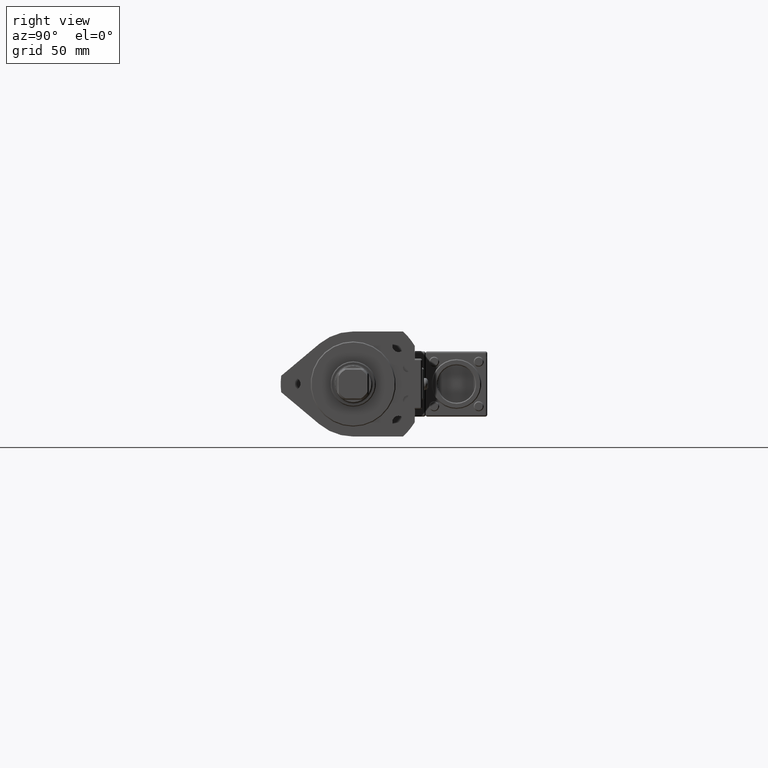
[diagram: clean part render]
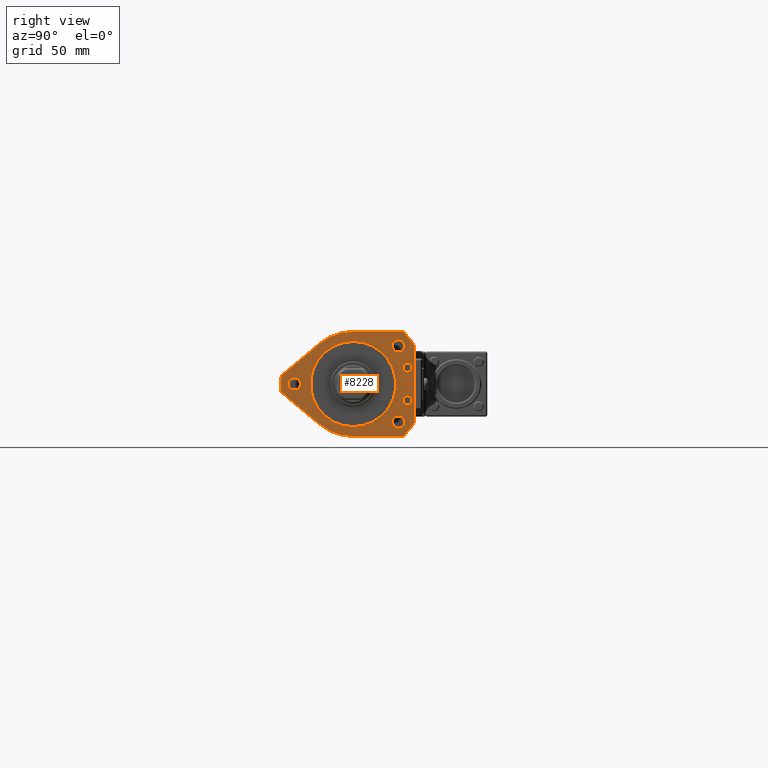
[diagram: same view with one face highlighted and labeled with its STEP entity id]
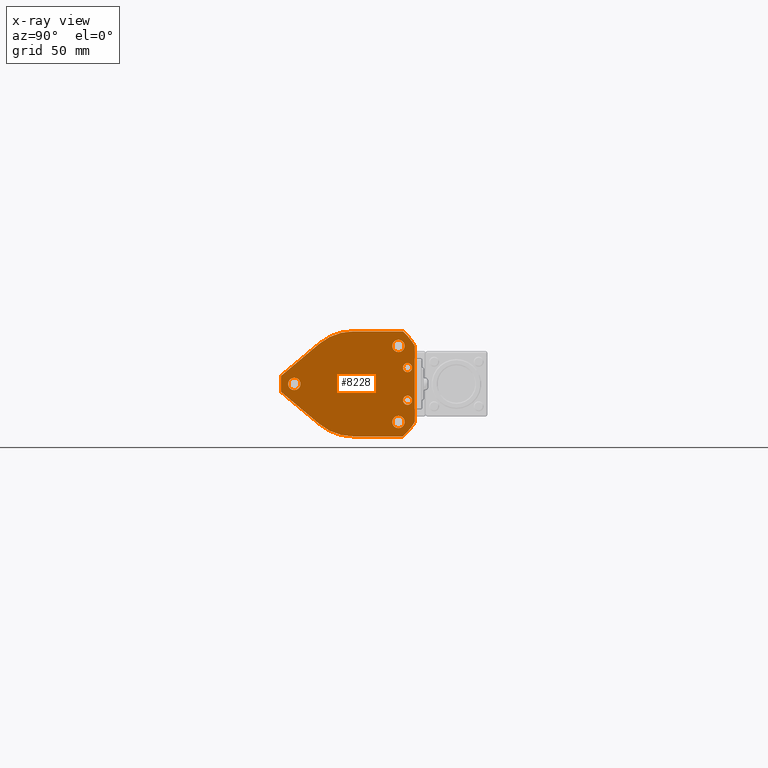
[diagram: x-ray of the same camera — body ghosted, the highlighted face saturated]
A machine part, right view. The second image highlights one B-rep face of the part: STEP entity #8228.
The next image is the same camera in x-ray: the body ghosted, the highlighted face saturated — about 0% of this face is hidden behind the body in this view.
In plain terms, the highlighted planar face has unit normal (-1, 0, 0).
Its self-contained STEP definition (entity closure, byte-faithful):
#2 = AXIS2_PLACEMENT_3D ( 'NONE', #9466, #3735, #10420 ) ;
#7 = DIRECTION ( 'NONE',  ( 0.0000000000000000000, 0.0000000000000000000, 1.000000000000000000 ) ) ;
#104 = DIRECTION ( 'NONE',  ( 1.000000000000000000, -0.0000000000000000000, -0.0000000000000000000 ) ) ;
#124 = CIRCLE ( 'NONE', #10028, 28.99999999999999600 ) ;
#134 = CARTESIAN_POINT ( 'NONE',  ( 1.138921523207035600E-015, -32.50000000000000000, -3.980102097228898600E-015 ) ) ;
#295 = EDGE_CURVE ( 'NONE', #11164, #10907, #8881, .T. ) ;
#353 = VERTEX_POINT ( 'NONE', #9888 ) ;
#425 = CARTESIAN_POINT ( 'NONE',  ( 1.102182119232607200E-016, 29.99999999999999600, -8.999999999999996400 ) ) ;
#432 = DIRECTION ( 'NONE',  ( -0.0000000000000000000, 1.000000000000000000, -0.0000000000000000000 ) ) ;
#545 = EDGE_LOOP ( 'NONE', ( #8163, #8890 ) ) ;
#633 = CARTESIAN_POINT ( 'NONE',  ( 0.0000000000000000000, 27.54995462791182700, 28.99999999999999300 ) ) ;
#675 = ORIENTED_EDGE ( 'NONE', *, *, #7061, .F. ) ;
#751 = ORIENTED_EDGE ( 'NONE', *, *, #9516, .F. ) ;
#801 = ORIENTED_EDGE ( 'NONE', *, *, #5025, .F. ) ;
#926 = DIRECTION ( 'NONE',  ( 0.0000000000000000000, 0.0000000000000000000, 1.000000000000000000 ) ) ;
#941 = ORIENTED_EDGE ( 'NONE', *, *, #5769, .F. ) ;
#945 = EDGE_CURVE ( 'NONE', #2392, #353, #11850, .T. ) ;
#1076 = DIRECTION ( 'NONE',  ( 0.0000000000000000000, 0.0000000000000000000, -1.000000000000000000 ) ) ;
#1174 = FACE_BOUND ( 'NONE', #6062, .T. ) ;
#1212 = EDGE_CURVE ( 'NONE', #6483, #9055, #4057, .T. ) ;
#1247 = ORIENTED_EDGE ( 'NONE', *, *, #8858, .F. ) ;
#1374 = DIRECTION ( 'NONE',  ( 0.0000000000000000000, 0.0000000000000000000, -1.000000000000000000 ) ) ;
#1651 = CARTESIAN_POINT ( 'NONE',  ( 1.138921523207035600E-015, 25.00000000000000000, 17.60000000000001600 ) ) ;
#1679 = AXIS2_PLACEMENT_3D ( 'NONE', #134, #6807, #1076 ) ;
#1709 = AXIS2_PLACEMENT_3D ( 'NONE', #4363, #11060, #5330 ) ;
#1876 = CARTESIAN_POINT ( 'NONE',  ( 1.102182119232607200E-016, 30.00000000000000000, 6.500000000000007100 ) ) ;
#2079 = EDGE_LOOP ( 'NONE', ( #675, #8348 ) ) ;
#2091 = VERTEX_POINT ( 'NONE', #7030 ) ;
#2148 = CARTESIAN_POINT ( 'NONE',  ( 1.102182119232607200E-016, 30.00000000000000000, 9.000000000000003600 ) ) ;
#2244 = AXIS2_PLACEMENT_3D ( 'NONE', #5813, #104, #6775 ) ;
#2259 = CARTESIAN_POINT ( 'NONE',  ( 1.102182119232607200E-016, 30.00000000000000000, 9.000000000000003600 ) ) ;
#2392 = VERTEX_POINT ( 'NONE', #2836 ) ;
#2480 = ORIENTED_EDGE ( 'NONE', *, *, #1212, .F. ) ;
#2635 = CIRCLE ( 'NONE', #10683, 3.399999999999989700 ) ;
#2836 = CARTESIAN_POINT ( 'NONE',  ( 1.138921523207035600E-015, -32.50000000000000000, 3.399999999999986100 ) ) ;
#2879 = DIRECTION ( 'NONE',  ( 1.000000000000000000, -0.0000000000000000000, -0.0000000000000000000 ) ) ;
#2906 = ORIENTED_EDGE ( 'NONE', *, *, #4182, .F. ) ;
#3042 = CARTESIAN_POINT ( 'NONE',  ( 1.102182119232607200E-016, 29.99999999999999600, -11.49999999999999500 ) ) ;
#3104 = DIRECTION ( 'NONE',  ( 0.0000000000000000000, 0.0000000000000000000, -1.000000000000000000 ) ) ;
#3214 = DIRECTION ( 'NONE',  ( 0.0000000000000000000, 0.0000000000000000000, -1.000000000000000000 ) ) ;
#3229 = EDGE_LOOP ( 'NONE', ( #10265, #9115 ) ) ;
#3272 = VECTOR ( 'NONE', #3611, 1000.000000000000000 ) ;
#3289 = DIRECTION ( 'NONE',  ( -1.000000000000000000, 0.0000000000000000000, 0.0000000000000000000 ) ) ;
#3296 = CIRCLE ( 'NONE', #2, 28.99999999999999600 ) ;
#3351 = AXIS2_PLACEMENT_3D ( 'NONE', #9184, #3444, #10138 ) ;
#3440 = DIRECTION ( 'NONE',  ( 1.000000000000000000, -0.0000000000000000000, -0.0000000000000000000 ) ) ;
#3444 = DIRECTION ( 'NONE',  ( 1.000000000000000000, -0.0000000000000000000, -0.0000000000000000000 ) ) ;
#3447 = CIRCLE ( 'NONE', #12166, 3.399999999999989700 ) ;
#3516 = DIRECTION ( 'NONE',  ( -1.000000000000000000, 0.0000000000000000000, 0.0000000000000000000 ) ) ;
#3581 = DIRECTION ( 'NONE',  ( 0.0000000000000000000, 0.7660444431189722400, 0.6427876096865461400 ) ) ;
#3611 = DIRECTION ( 'NONE',  ( 0.0000000000000000000, -1.000000000000000000, 1.259329461268367200E-016 ) ) ;
#3614 = CARTESIAN_POINT ( 'NONE',  ( 1.138921523207035600E-015, -32.50000000000000000, -3.980102097228898600E-015 ) ) ;
#3730 = FACE_BOUND ( 'NONE', #2079, .T. ) ;
#3735 = DIRECTION ( 'NONE',  ( -1.000000000000000000, 0.0000000000000000000, 0.0000000000000000000 ) ) ;
#3760 = EDGE_CURVE ( 'NONE', #6357, #10389, #4958, .T. ) ;
#3800 = AXIS2_PLACEMENT_3D ( 'NONE', #10876, #7024, #11849 ) ;
#3851 = DIRECTION ( 'NONE',  ( 1.000000000000000000, -0.0000000000000000000, -0.0000000000000000000 ) ) ;
#3886 = CIRCLE ( 'NONE', #5679, 39.99999999999999300 ) ;
#3990 = VECTOR ( 'NONE', #11585, 1000.000000000000000 ) ;
#4019 = VERTEX_POINT ( 'NONE', #10169 ) ;
#4057 = CIRCLE ( 'NONE', #3351, 2.499999999999998700 ) ;
#4176 = PLANE ( 'NONE',  #3800 ) ;
#4182 = EDGE_CURVE ( 'NONE', #2091, #8619, #3296, .T. ) ;
#4258 = EDGE_CURVE ( 'NONE', #8619, #8213, #11983, .T. ) ;
#4263 = CARTESIAN_POINT ( 'NONE',  ( 0.0000000000000000000, 27.54995462791182700, 28.99999999999999300 ) ) ;
#4269 = LINE ( 'NONE', #5842, #3990 ) ;
#4312 = ORIENTED_EDGE ( 'NONE', *, *, #9363, .F. ) ;
#4363 = CARTESIAN_POINT ( 'NONE',  ( 0.0000000000000000000, 0.0000000000000000000, 0.0000000000000000000 ) ) ;
#4429 = EDGE_CURVE ( 'NONE', #353, #2392, #3447, .T. ) ;
#4565 = DIRECTION ( 'NONE',  ( 0.0000000000000000000, 0.0000000000000000000, -1.000000000000000000 ) ) ;
#4594 = CARTESIAN_POINT ( 'NONE',  ( -0.0000000000000000000, -39.74533033180142600, -4.506519368202528000 ) ) ;
#4910 = DIRECTION ( 'NONE',  ( -0.0000000000000000000, -0.7660444431189815700, 0.6427876096865350300 ) ) ;
#4939 = AXIS2_PLACEMENT_3D ( 'NONE', #2148, #8844, #3104 ) ;
#4958 = CIRCLE ( 'NONE', #4939, 2.499999999999995100 ) ;
#5025 = EDGE_CURVE ( 'NONE', #9191, #9220, #3886, .T. ) ;
#5298 = AXIS2_PLACEMENT_3D ( 'NONE', #425, #7098, #1374 ) ;
#5330 = DIRECTION ( 'NONE',  ( 0.0000000000000000000, 0.0000000000000000000, 1.000000000000000000 ) ) ;
#5526 = CIRCLE ( 'NONE', #5298, 2.499999999999998700 ) ;
#5605 = VERTEX_POINT ( 'NONE', #10994 ) ;
#5679 = AXIS2_PLACEMENT_3D ( 'NONE', #12393, #6648, #926 ) ;
#5769 = EDGE_CURVE ( 'NONE', #9220, #8014, #8383, .T. ) ;
#5813 = CARTESIAN_POINT ( 'NONE',  ( 1.138921523207035600E-015, 25.00000000000000000, -20.99999999999999600 ) ) ;
#5842 = CARTESIAN_POINT ( 'NONE',  ( 0.0000000000000000000, 33.99999999999998600, -21.07130750570548000 ) ) ;
#5851 = CIRCLE ( 'NONE', #2244, 3.399999999999989700 ) ;
#5934 = VERTEX_POINT ( 'NONE', #10591 ) ;
#5971 = CARTESIAN_POINT ( 'NONE',  ( 0.0000000000000000000, 33.99999999999998600, -21.07130750570548000 ) ) ;
#6062 = EDGE_LOOP ( 'NONE', ( #2480, #12026 ) ) ;
#6110 = CIRCLE ( 'NONE', #11332, 2.499999999999995100 ) ;
#6246 = FACE_BOUND ( 'NONE', #3229, .T. ) ;
#6357 = VERTEX_POINT ( 'NONE', #1876 ) ;
#6367 = ORIENTED_EDGE ( 'NONE', *, *, #9602, .F. ) ;
#6483 = VERTEX_POINT ( 'NONE', #3042 ) ;
#6562 = ORIENTED_EDGE ( 'NONE', *, *, #9607, .F. ) ;
#6567 = FACE_BOUND ( 'NONE', #11746, .T. ) ;
#6648 = DIRECTION ( 'NONE',  ( -1.000000000000000000, 0.0000000000000000000, 0.0000000000000000000 ) ) ;
#6775 = DIRECTION ( 'NONE',  ( 0.0000000000000000000, 0.0000000000000000000, -1.000000000000000000 ) ) ;
#6807 = DIRECTION ( 'NONE',  ( 1.000000000000000000, -0.0000000000000000000, -0.0000000000000000000 ) ) ;
#7024 = DIRECTION ( 'NONE',  ( -1.000000000000000000, 0.0000000000000000000, 0.0000000000000000000 ) ) ;
#7030 = CARTESIAN_POINT ( 'NONE',  ( 0.0000000000000000000, -18.64084068090984300, 22.21528885045019700 ) ) ;
#7061 = EDGE_CURVE ( 'NONE', #5934, #5605, #5851, .T. ) ;
#7085 = ORIENTED_EDGE ( 'NONE', *, *, #9487, .F. ) ;
#7098 = DIRECTION ( 'NONE',  ( 1.000000000000000000, -0.0000000000000000000, -0.0000000000000000000 ) ) ;
#7750 = CARTESIAN_POINT ( 'NONE',  ( 0.0000000000000000000, 0.0000000000000000000, 28.99999999999999600 ) ) ;
#7897 = CARTESIAN_POINT ( 'NONE',  ( 0.0000000000000000000, 27.54995462791180600, -29.00000000000000400 ) ) ;
#7993 = CARTESIAN_POINT ( 'NONE',  ( 0.0000000000000000000, 1.751250657896301300E-015, -29.00000000000000400 ) ) ;
#8001 = EDGE_CURVE ( 'NONE', #10389, #6357, #6110, .T. ) ;
#8014 = VERTEX_POINT ( 'NONE', #7993 ) ;
#8046 = EDGE_CURVE ( 'NONE', #9055, #6483, #5526, .T. ) ;
#8163 = ORIENTED_EDGE ( 'NONE', *, *, #9073, .F. ) ;
#8213 = VERTEX_POINT ( 'NONE', #633 ) ;
#8223 = CARTESIAN_POINT ( 'NONE',  ( 0.0000000000000000000, 34.00000000000000000, 21.07130750570548000 ) ) ;
#8228 = ADVANCED_FACE ( 'NONE', ( #6567, #1174, #9417, #3730, #6246, #11042 ), #4176, .F. ) ;
#8272 = VERTEX_POINT ( 'NONE', #9044 ) ;
#8348 = ORIENTED_EDGE ( 'NONE', *, *, #9530, .F. ) ;
#8383 = LINE ( 'NONE', #11257, #3272 ) ;
#8606 = AXIS2_PLACEMENT_3D ( 'NONE', #9581, #3851, #10537 ) ;
#8614 = CARTESIAN_POINT ( 'NONE',  ( 1.138921523207035600E-015, 25.00000000000000000, -20.99999999999999600 ) ) ;
#8619 = VERTEX_POINT ( 'NONE', #7750 ) ;
#8786 = VECTOR ( 'NONE', #4910, 1000.000000000000200 ) ;
#8844 = DIRECTION ( 'NONE',  ( 1.000000000000000000, -0.0000000000000000000, -0.0000000000000000000 ) ) ;
#8858 = EDGE_CURVE ( 'NONE', #8213, #12378, #9245, .T. ) ;
#8881 = CIRCLE ( 'NONE', #10321, 3.399999999999989700 ) ;
#8890 = ORIENTED_EDGE ( 'NONE', *, *, #295, .F. ) ;
#8954 = DIRECTION ( 'NONE',  ( 1.000000000000000000, -0.0000000000000000000, -0.0000000000000000000 ) ) ;
#9026 = CARTESIAN_POINT ( 'NONE',  ( 0.0000000000000000000, 0.0000000000000000000, 0.0000000000000000000 ) ) ;
#9044 = CARTESIAN_POINT ( 'NONE',  ( 0.0000000000000000000, -39.74533033180151200, 4.506519368201952400 ) ) ;
#9055 = VERTEX_POINT ( 'NONE', #10501 ) ;
#9073 = EDGE_CURVE ( 'NONE', #10907, #11164, #12242, .T. ) ;
#9074 = LINE ( 'NONE', #9696, #8786 ) ;
#9115 = ORIENTED_EDGE ( 'NONE', *, *, #945, .F. ) ;
#9179 = CARTESIAN_POINT ( 'NONE',  ( 1.138921523207035600E-015, 25.00000000000000000, 21.00000000000000400 ) ) ;
#9184 = CARTESIAN_POINT ( 'NONE',  ( 1.102182119232607200E-016, 29.99999999999999600, -8.999999999999996400 ) ) ;
#9191 = VERTEX_POINT ( 'NONE', #5971 ) ;
#9220 = VERTEX_POINT ( 'NONE', #7897 ) ;
#9236 = CIRCLE ( 'NONE', #1709, 39.99999999999999300 ) ;
#9245 = CIRCLE ( 'NONE', #10114, 40.00000000000000000 ) ;
#9313 = CARTESIAN_POINT ( 'NONE',  ( 0.0000000000000000000, -39.74533033180151200, 4.506519368201952400 ) ) ;
#9328 = ORIENTED_EDGE ( 'NONE', *, *, #8001, .F. ) ;
#9363 = EDGE_CURVE ( 'NONE', #11500, #8272, #9236, .T. ) ;
#9417 = FACE_BOUND ( 'NONE', #545, .T. ) ;
#9454 = VECTOR ( 'NONE', #432, 1000.000000000000000 ) ;
#9466 = CARTESIAN_POINT ( 'NONE',  ( 0.0000000000000000000, 0.0000000000000000000, 0.0000000000000000000 ) ) ;
#9487 = EDGE_CURVE ( 'NONE', #8272, #2091, #10274, .T. ) ;
#9516 = EDGE_CURVE ( 'NONE', #8014, #4019, #124, .T. ) ;
#9530 = EDGE_CURVE ( 'NONE', #5605, #5934, #2635, .T. ) ;
#9569 = DIRECTION ( 'NONE',  ( 0.0000000000000000000, 0.0000000000000000000, -1.000000000000000000 ) ) ;
#9581 = CARTESIAN_POINT ( 'NONE',  ( 1.138921523207035600E-015, 25.00000000000000000, 21.00000000000000400 ) ) ;
#9602 = EDGE_CURVE ( 'NONE', #12378, #9191, #4269, .T. ) ;
#9607 = EDGE_CURVE ( 'NONE', #4019, #11500, #9074, .T. ) ;
#9696 = CARTESIAN_POINT ( 'NONE',  ( -0.0000000000000000000, -39.74533033180142600, -4.506519368202528000 ) ) ;
#9888 = CARTESIAN_POINT ( 'NONE',  ( 1.138921523207035600E-015, -32.50000000000000000, -3.399999999999993700 ) ) ;
#9982 = DIRECTION ( 'NONE',  ( 0.0000000000000000000, 0.0000000000000000000, 1.000000000000000000 ) ) ;
#10028 = AXIS2_PLACEMENT_3D ( 'NONE', #10203, #3516, #7 ) ;
#10114 = AXIS2_PLACEMENT_3D ( 'NONE', #9026, #3289, #9982 ) ;
#10121 = CARTESIAN_POINT ( 'NONE',  ( 1.102182119232607200E-016, 30.00000000000000000, 11.49999999999999800 ) ) ;
#10135 = DIRECTION ( 'NONE',  ( 0.0000000000000000000, 0.0000000000000000000, -1.000000000000000000 ) ) ;
#10138 = DIRECTION ( 'NONE',  ( 0.0000000000000000000, 0.0000000000000000000, -1.000000000000000000 ) ) ;
#10169 = CARTESIAN_POINT ( 'NONE',  ( 0.0000000000000000000, -18.64084068090952300, -22.21528885045046000 ) ) ;
#10203 = CARTESIAN_POINT ( 'NONE',  ( 0.0000000000000000000, 0.0000000000000000000, 0.0000000000000000000 ) ) ;
#10265 = ORIENTED_EDGE ( 'NONE', *, *, #4429, .F. ) ;
#10274 = LINE ( 'NONE', #9313, #10584 ) ;
#10294 = DIRECTION ( 'NONE',  ( 1.000000000000000000, -0.0000000000000000000, -0.0000000000000000000 ) ) ;
#10321 = AXIS2_PLACEMENT_3D ( 'NONE', #9179, #3440, #10135 ) ;
#10389 = VERTEX_POINT ( 'NONE', #10121 ) ;
#10420 = DIRECTION ( 'NONE',  ( 0.0000000000000000000, 0.0000000000000000000, 1.000000000000000000 ) ) ;
#10501 = CARTESIAN_POINT ( 'NONE',  ( 1.102182119232607200E-016, 29.99999999999999600, -6.499999999999997300 ) ) ;
#10537 = DIRECTION ( 'NONE',  ( 0.0000000000000000000, 0.0000000000000000000, -1.000000000000000000 ) ) ;
#10584 = VECTOR ( 'NONE', #3581, 1000.000000000000100 ) ;
#10591 = CARTESIAN_POINT ( 'NONE',  ( 1.138921523207035600E-015, 25.00000000000000000, -24.39999999999998800 ) ) ;
#10683 = AXIS2_PLACEMENT_3D ( 'NONE', #8614, #2879, #9569 ) ;
#10721 = CARTESIAN_POINT ( 'NONE',  ( 1.138921523207035600E-015, 25.00000000000000000, 24.39999999999999500 ) ) ;
#10876 = CARTESIAN_POINT ( 'NONE',  ( 0.0000000000000000000, 0.0000000000000000000, 0.0000000000000000000 ) ) ;
#10907 = VERTEX_POINT ( 'NONE', #1651 ) ;
#10994 = CARTESIAN_POINT ( 'NONE',  ( 1.138921523207035600E-015, 25.00000000000000000, -17.60000000000000900 ) ) ;
#11041 = EDGE_LOOP ( 'NONE', ( #4312, #6562, #751, #941, #801, #6367, #1247, #12371, #2906, #7085 ) ) ;
#11042 = FACE_OUTER_BOUND ( 'NONE', #11041, .T. ) ;
#11060 = DIRECTION ( 'NONE',  ( -1.000000000000000000, 0.0000000000000000000, 0.0000000000000000000 ) ) ;
#11164 = VERTEX_POINT ( 'NONE', #10721 ) ;
#11257 = CARTESIAN_POINT ( 'NONE',  ( 0.0000000000000000000, 27.54995462791181300, -29.00000000000000700 ) ) ;
#11332 = AXIS2_PLACEMENT_3D ( 'NONE', #2259, #8954, #3214 ) ;
#11500 = VERTEX_POINT ( 'NONE', #4594 ) ;
#11585 = DIRECTION ( 'NONE',  ( -0.0000000000000000000, -3.293053315285908400E-016, -1.000000000000000000 ) ) ;
#11713 = ORIENTED_EDGE ( 'NONE', *, *, #3760, .F. ) ;
#11746 = EDGE_LOOP ( 'NONE', ( #11713, #9328 ) ) ;
#11849 = DIRECTION ( 'NONE',  ( 0.0000000000000000000, 0.0000000000000000000, 1.000000000000000000 ) ) ;
#11850 = CIRCLE ( 'NONE', #1679, 3.399999999999989700 ) ;
#11983 = LINE ( 'NONE', #4263, #9454 ) ;
#12026 = ORIENTED_EDGE ( 'NONE', *, *, #8046, .F. ) ;
#12166 = AXIS2_PLACEMENT_3D ( 'NONE', #3614, #10294, #4565 ) ;
#12242 = CIRCLE ( 'NONE', #8606, 3.399999999999989700 ) ;
#12371 = ORIENTED_EDGE ( 'NONE', *, *, #4258, .F. ) ;
#12378 = VERTEX_POINT ( 'NONE', #8223 ) ;
#12393 = CARTESIAN_POINT ( 'NONE',  ( 0.0000000000000000000, 0.0000000000000000000, 0.0000000000000000000 ) ) ;